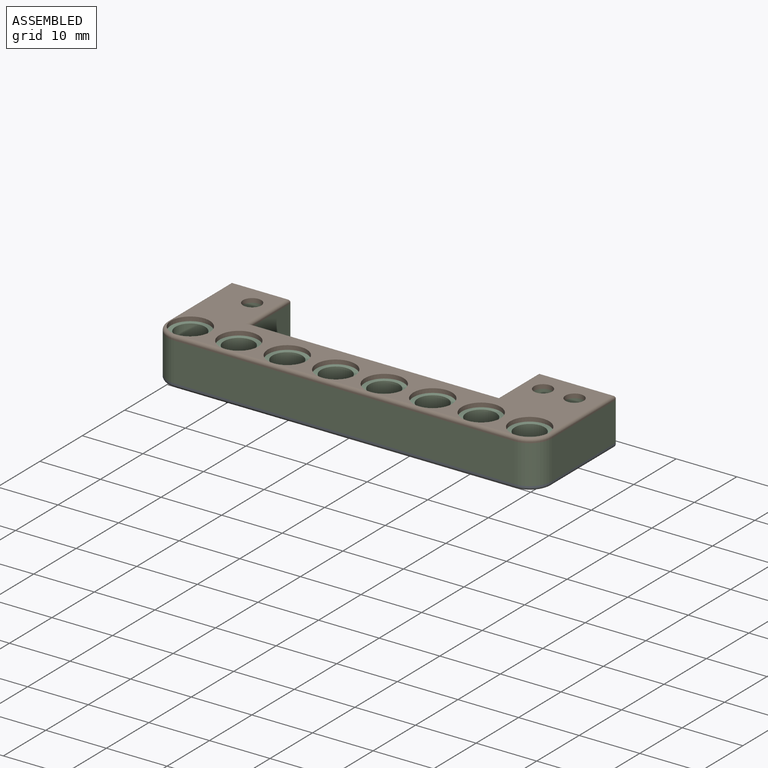
[diagram: assembled view]
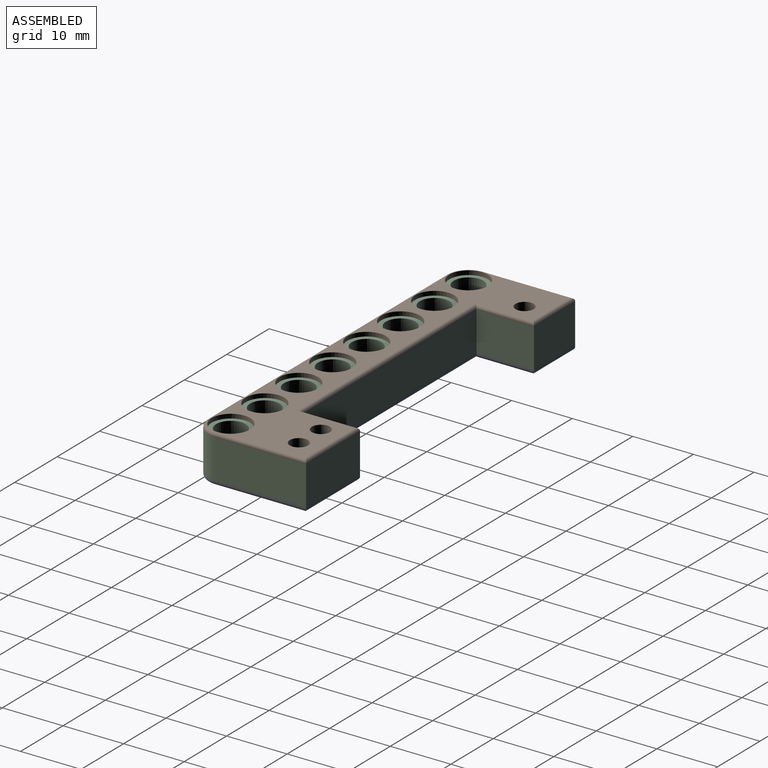
[diagram: assembled view, second angle]
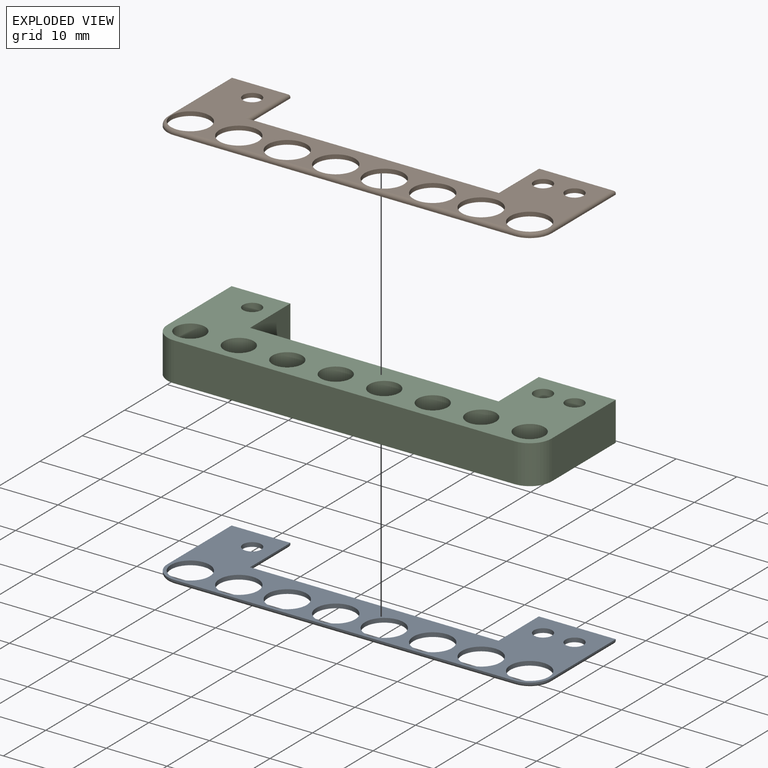
[diagram: exploded view]
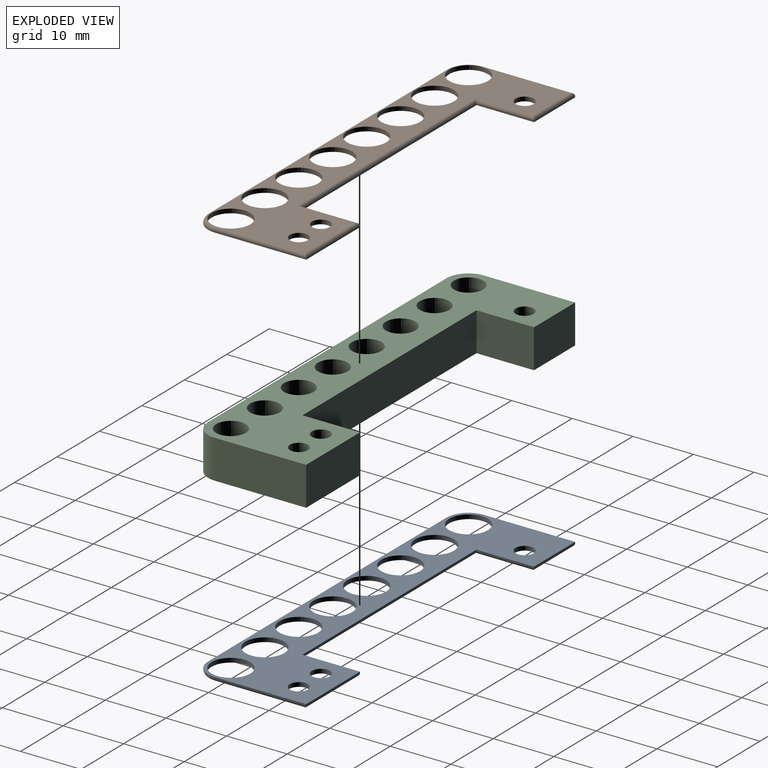
[diagram: exploded view, second angle]
ASSEMBLY  parts=3 mates=2
PART A: 35 faces, bbox 64x19x0.9 mm
  f0: plane 3.2x3.2mm, normal (0,0,-1), area 0.1mm2, adj f19,f24,f26,f34
  f1: plane 3.2x3.2mm, normal (0,0,-1), area 0.1mm2, adj f12,f26,f28,f32
  f2: plane 62.4x17.7mm, normal (0,0,-1), area 422.5mm2, adj f10,f11,f12,f13,f14,f15,f16,f17
  f3: plane 56.2x0.2mm, normal (0,-1,0), area 11.2mm2, adj f22,f26,f31,f33
  f4: plane 15.1x0.2mm, normal (1,0,0), area 3mm2, adj f5,f22,f24,f33
  f5: plane 12.7x0.2mm, normal (0,1,0), area 2.5mm2, adj f4,f6,f22,f23
  f6: plane 9.5x0.2mm, normal (-1,0,0), area 1.9mm2, adj f5,f7,f22,f25
  f7: plane 41x0.2mm, normal (0,1,0), area 8.2mm2, adj f6,f8,f22,f27
  f8: plane 9.5x0.2mm, normal (1,0,0), area 1.9mm2, adj f7,f9,f22,f29
  f9: plane 9.7x0.2mm, normal (0,1,0), area 1.9mm2, adj f8,f21,f22,f30
  f10: cylinder r=1.5mm len=3mm, axis (0,0,-1), area 6.6mm2, adj f2,f22
  f11: cylinder r=1.5mm len=3mm, axis (0,0,-1), area 6.6mm2, adj f2,f22
  f12: cylinder r=3.2mm len=6.4mm, axis (0,0,-1), area 14.1mm2, adj f1,f2,f22
  f13: cylinder r=3.2mm len=6.4mm, axis (0,0,-1), area 14.1mm2, adj f2,f22
  f14: cylinder r=3.2mm len=6.4mm, axis (0,0,-1), area 14.1mm2, adj f2,f22
  f15: cylinder r=3.2mm len=6.4mm, axis (0,0,-1), area 14.1mm2, adj f2,f22
  f16: cylinder r=3.2mm len=6.4mm, axis (0,0,-1), area 14.1mm2, adj f2,f22
  f17: cylinder r=3.2mm len=6.4mm, axis (0,0,-1), area 14.1mm2, adj f2,f22
  f18: cylinder r=3.2mm len=6.4mm, axis (0,0,-1), area 14.1mm2, adj f2,f22
  f19: cylinder r=3.2mm len=6.4mm, axis (0,0,-1), area 14.1mm2, adj f0,f2,f22
  f20: cylinder r=1.5mm len=3mm, axis (0,0,-1), area 6.6mm2, adj f2,f22
  f21: plane 15.1x0.2mm, normal (-1,0,0), area 3mm2, adj f9,f22,f28,f31
  f22: plane 63.4x18.7mm, normal (0,0,1), area 512mm2, adj f3,f4,f5,f6,f7,f8,f9,f10
  f23: cylinder r=0.5mm len=12.7mm, axis (-1,0,0), area 9.7mm2, adj f2,f5,f24,f25
  f24: cylinder r=0.5mm len=15.1mm, axis (0,1,0), area 11.7mm2, adj f0,f2,f4,f23,f34
  f25: cylinder r=0.5mm len=10mm, axis (0,-1,0), area 7.5mm2, adj f2,f6,f23,f27
  f26: cylinder r=0.5mm len=56.2mm, axis (1,0,0), area 44.1mm2, adj f0,f1,f2,f3,f32,f34
  f27: cylinder r=0.5mm len=42mm, axis (-1,0,0), area 32.5mm2, adj f2,f7,f25,f29
  f28: cylinder r=0.5mm len=15.1mm, axis (0,-1,0), area 11.7mm2, adj f1,f2,f21,f30,f32
  f29: cylinder r=0.5mm len=10mm, axis (0,1,0), area 7.5mm2, adj f2,f8,f27,f30
  f30: cylinder r=0.5mm len=9.7mm, axis (-1,0,0), area 7.3mm2, adj f2,f9,f28,f29
  f31: cylinder r=3.6mm len=3.6mm, axis (0,0,-1), area 1.1mm2, adj f3,f21,f22,f32
  f32: torus R=3.1mm, axis (0,0,1), area 4.2mm2, adj f1,f26,f28,f31
  f33: cylinder r=3.6mm len=3.6mm, axis (0,0,-1), area 1.1mm2, adj f3,f4,f22,f34
  f34: torus R=3.1mm, axis (0,0,1), area 4.2mm2, adj f0,f24,f26,f33
PART B: 35 faces, bbox 64x19x0.7 mm
  f0: plane 3.2x3.2mm, normal (0,0,1), area 0.1mm2, adj f19,f24,f26,f34
  f1: plane 3.2x3.2mm, normal (0,0,1), area 0.1mm2, adj f12,f26,f28,f32
  f2: plane 62.4x17.7mm, normal (0,0,1), area 422.5mm2, adj f10,f11,f12,f13,f14,f15,f16,f17
  f3: plane 56.2x0.2mm, normal (0,-1,0), area 11.2mm2, adj f22,f26,f31,f33
  f4: plane 15.1x0.2mm, normal (1,0,0), area 3mm2, adj f5,f22,f24,f33
  f5: plane 12.7x0.2mm, normal (0,1,0), area 2.5mm2, adj f4,f6,f22,f23
  f6: plane 9.5x0.2mm, normal (-1,0,0), area 1.9mm2, adj f5,f7,f22,f25
  f7: plane 41x0.2mm, normal (0,1,0), area 8.2mm2, adj f6,f8,f22,f27
  f8: plane 9.5x0.2mm, normal (1,0,0), area 1.9mm2, adj f7,f9,f22,f29
  f9: plane 9.7x0.2mm, normal (0,1,0), area 1.9mm2, adj f8,f21,f22,f30
  f10: cylinder r=1.5mm len=3mm, axis (0,0,-1), area 6.6mm2, adj f2,f22
  f11: cylinder r=1.5mm len=3mm, axis (0,0,-1), area 6.6mm2, adj f2,f22
  f12: cylinder r=3.2mm len=6.4mm, axis (0,0,-1), area 14.1mm2, adj f1,f2,f22
  f13: cylinder r=3.2mm len=6.4mm, axis (0,0,-1), area 14.1mm2, adj f2,f22
  f14: cylinder r=3.2mm len=6.4mm, axis (0,0,-1), area 14.1mm2, adj f2,f22
  f15: cylinder r=3.2mm len=6.4mm, axis (0,0,-1), area 14.1mm2, adj f2,f22
  f16: cylinder r=3.2mm len=6.4mm, axis (0,0,-1), area 14.1mm2, adj f2,f22
  f17: cylinder r=3.2mm len=6.4mm, axis (0,0,-1), area 14.1mm2, adj f2,f22
  f18: cylinder r=3.2mm len=6.4mm, axis (0,0,-1), area 14.1mm2, adj f2,f22
  f19: cylinder r=3.2mm len=6.4mm, axis (0,0,-1), area 14.1mm2, adj f0,f2,f22
  f20: cylinder r=1.5mm len=3mm, axis (0,0,-1), area 6.6mm2, adj f2,f22
  f21: plane 15.1x0.2mm, normal (-1,0,0), area 3mm2, adj f9,f22,f28,f31
  f22: plane 63.4x18.7mm, normal (0,0,-1), area 512mm2, adj f3,f4,f5,f6,f7,f8,f9,f10
  f23: cylinder r=0.5mm len=12.7mm, axis (1,0,0), area 9.7mm2, adj f2,f5,f24,f25
  f24: cylinder r=0.5mm len=15.1mm, axis (0,-1,0), area 11.7mm2, adj f0,f2,f4,f23,f34
  f25: cylinder r=0.5mm len=10mm, axis (0,1,0), area 7.5mm2, adj f2,f6,f23,f27
  f26: cylinder r=0.5mm len=56.2mm, axis (-1,0,0), area 44.1mm2, adj f0,f1,f2,f3,f32,f34
  f27: cylinder r=0.5mm len=42mm, axis (1,0,0), area 32.5mm2, adj f2,f7,f25,f29
  f28: cylinder r=0.5mm len=15.1mm, axis (0,1,0), area 11.7mm2, adj f1,f2,f21,f30,f32
  f29: cylinder r=0.5mm len=10mm, axis (0,-1,0), area 7.5mm2, adj f2,f8,f27,f30
  f30: cylinder r=0.5mm len=9.7mm, axis (1,0,0), area 7.3mm2, adj f2,f9,f28,f29
  f31: cylinder r=3.6mm len=3.6mm, axis (0,0,-1), area 1.1mm2, adj f3,f21,f22,f32
  f32: torus R=3.1mm, axis (0,0,1), area 4.2mm2, adj f1,f26,f28,f31
  f33: cylinder r=3.6mm len=3.6mm, axis (0,0,-1), area 1.1mm2, adj f3,f4,f22,f34
  f34: torus R=3.1mm, axis (0,0,1), area 4.2mm2, adj f0,f24,f26,f33
PART C: 23 faces, bbox 63.4x18.7x6.4 mm
  f0: plane 56.2x6.4mm, normal (0,-1,0), area 359.7mm2, adj f19,f20,f21,f22
  f1: plane 15.1x6.4mm, normal (1,0,0), area 96.6mm2, adj f2,f19,f20,f21
  f2: plane 12.7x6.4mm, normal (0,1,0), area 81.3mm2, adj f1,f3,f19,f20
  f3: plane 9.5x6.4mm, normal (-1,0,0), area 60.8mm2, adj f2,f4,f19,f20
  f4: plane 41x6.4mm, normal (0,1,0), area 262.4mm2, adj f3,f5,f19,f20
  f5: plane 9.5x6.4mm, normal (1,0,0), area 60.8mm2, adj f4,f6,f19,f20
  f6: plane 9.7x6.4mm, normal (0,1,0), area 62.1mm2, adj f5,f18,f19,f20
  f7: cylinder r=1.5mm len=6.4mm, axis (0,0,-1), area 60.3mm2, adj f19,f20
  f8: cylinder r=1.5mm len=6.4mm, axis (0,0,-1), area 60.3mm2, adj f19,f20
  f9: cylinder r=2.45mm len=6.4mm, axis (0,0,-1), area 98.5mm2, adj f19,f20
  f10: cylinder r=2.45mm len=6.4mm, axis (0,0,-1), area 98.5mm2, adj f19,f20
  f11: cylinder r=2.45mm len=6.4mm, axis (0,0,-1), area 98.5mm2, adj f19,f20
  f12: cylinder r=2.45mm len=6.4mm, axis (0,0,-1), area 98.5mm2, adj f19,f20
  f13: cylinder r=2.45mm len=6.4mm, axis (0,0,-1), area 98.5mm2, adj f19,f20
  f14: cylinder r=2.45mm len=6.4mm, axis (0,0,-1), area 98.5mm2, adj f19,f20
  f15: cylinder r=2.45mm len=6.4mm, axis (0,0,-1), area 98.5mm2, adj f19,f20
  f16: cylinder r=2.45mm len=6.4mm, axis (0,0,-1), area 98.5mm2, adj f19,f20
  f17: cylinder r=1.5mm len=6.4mm, axis (0,0,-1), area 60.3mm2, adj f19,f20
  f18: plane 15.1x6.4mm, normal (-1,0,0), area 96.6mm2, adj f6,f19,f20,f22
  f19: plane 63.4x18.7mm, normal (0,0,1), area 618.5mm2, adj f0,f1,f2,f3,f4,f5,f6,f7
  f20: plane 63.4x18.7mm, normal (0,0,-1), area 618.5mm2, adj f0,f1,f2,f3,f4,f5,f6,f7
  f21: cylinder r=3.6mm len=6.4mm, axis (0,0,-1), area 36.2mm2, adj f0,f1,f19,f20
  f22: cylinder r=3.6mm len=6.4mm, axis (0,0,-1), area 36.2mm2, adj f0,f18,f19,f20
PLACE A t=(-3.21,-13.63,-7.54)mm
PLACE B t=(-3.21,-13.63,-0.44)mm
PLACE C t=(-3.21,-13.63,-6.84)mm
MATE fastened A.f13 <-> C.f10  axis (0,0,1) through (0.79,-9.93,-6.84)mm
MATE fastened B.f15 <-> C.f12  axis (0,0,-1) through (-7.21,-9.93,-0.44)mm
